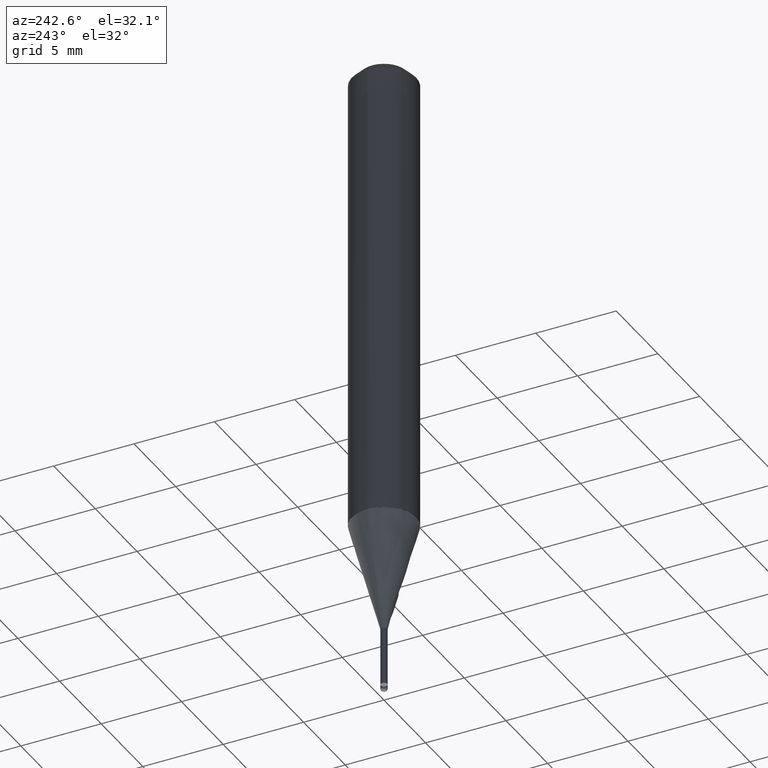
[diagram: clean part render]
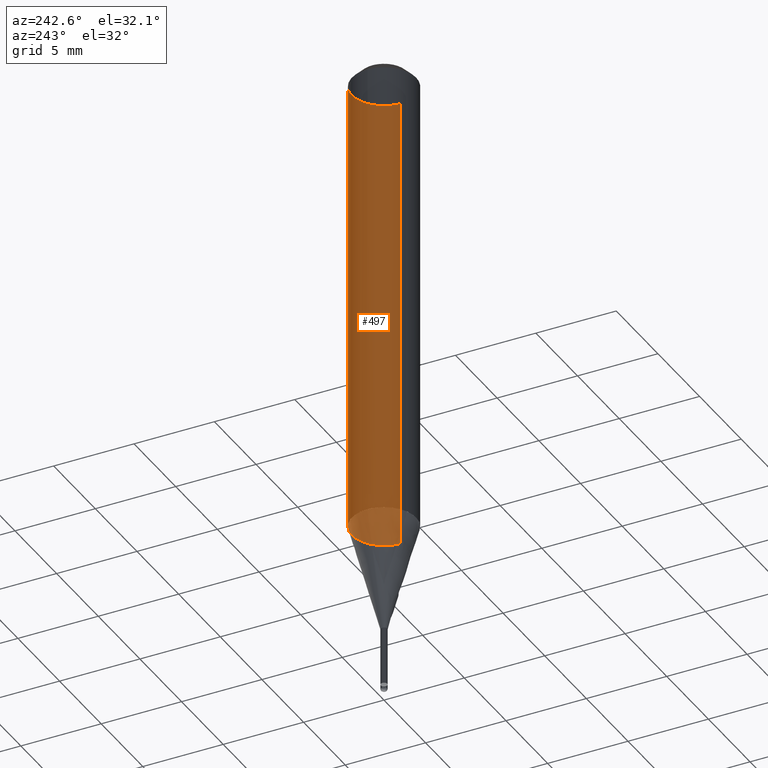
[diagram: same view with one face highlighted and labeled with its STEP entity id]
A machine part, auxiliary view. The second image highlights one B-rep face of the part: STEP entity #497.
In plain terms, the highlighted face is a freeform B-spline surface patch.
Its self-contained STEP definition (entity closure, byte-faithful):
#241=CARTESIAN_POINT('',(2.0,0.0,0.0));
#242=CARTESIAN_POINT('',(2.0,2.0,0.0));
#243=CARTESIAN_POINT('',(0.0,2.0,0.0));
#244=CARTESIAN_POINT('',(-2.0,2.0,0.0));
#245=CARTESIAN_POINT('',(-2.0,0.0,0.0));
#246=CARTESIAN_POINT('',(2.0,0.0,28.682));
#247=CARTESIAN_POINT('',(2.0,2.0,28.682));
#248=CARTESIAN_POINT('',(0.0,2.0,28.682));
#249=CARTESIAN_POINT('',(-2.0,2.0,28.682));
#250=CARTESIAN_POINT('',(-2.0,0.0,28.682));
#478=(
BOUNDED_SURFACE()
B_SPLINE_SURFACE(1,2,(
(#241,#242,#243,#244,#245),
(#246,#247,#248,#249,#250)
), .UNSPECIFIED.,.F.,.F.,.F.)
B_SPLINE_SURFACE_WITH_KNOTS((2,2),(3,2,3),(
0.0,1.0),(
0.0,0.5,1.0), .UNSPECIFIED.)
GEOMETRIC_REPRESENTATION_ITEM()
RATIONAL_B_SPLINE_SURFACE(((1.0,0.707106781187,1.0,0.707106781187,1.0),
(1.0,0.707106781187,1.0,0.707106781187,1.0)
))
REPRESENTATION_ITEM('')
SURFACE()
);
#479=(
BOUNDED_CURVE()
B_SPLINE_CURVE(2,(#246,#247,#248,#249,#250),.UNSPECIFIED.,.F.,.F.)
B_SPLINE_CURVE_WITH_KNOTS((3,2,3),
(0.0,0.5,1.0),.UNSPECIFIED.)
CURVE()
GEOMETRIC_REPRESENTATION_ITEM()
RATIONAL_B_SPLINE_CURVE((1.0,0.707106781187,1.0,0.707106781187,1.0))
REPRESENTATION_ITEM('')
);
#480=(
BOUNDED_CURVE()
B_SPLINE_CURVE(1,(#250,#245),.UNSPECIFIED.,.F.,.F.)
B_SPLINE_CURVE_WITH_KNOTS((2,2),
(0.0,1.0),.UNSPECIFIED.)
CURVE()
GEOMETRIC_REPRESENTATION_ITEM()
RATIONAL_B_SPLINE_CURVE((1.0,1.0))
REPRESENTATION_ITEM('')
);
#481=(
BOUNDED_CURVE()
B_SPLINE_CURVE(2,(#245,#244,#243,#242,#241),.UNSPECIFIED.,.F.,.F.)
B_SPLINE_CURVE_WITH_KNOTS((3,2,3),
(0.0,0.5,1.0),.UNSPECIFIED.)
CURVE()
GEOMETRIC_REPRESENTATION_ITEM()
RATIONAL_B_SPLINE_CURVE((1.0,0.707106781187,1.0,0.707106781187,1.0))
REPRESENTATION_ITEM('')
);
#482=(
BOUNDED_CURVE()
B_SPLINE_CURVE(1,(#241,#246),.UNSPECIFIED.,.F.,.F.)
B_SPLINE_CURVE_WITH_KNOTS((2,2),
(0.0,1.0),.UNSPECIFIED.)
CURVE()
GEOMETRIC_REPRESENTATION_ITEM()
RATIONAL_B_SPLINE_CURVE((1.0,1.0))
REPRESENTATION_ITEM('')
);
#483=VERTEX_POINT('',#241);
#484=VERTEX_POINT('',#245);
#485=VERTEX_POINT('',#246);
#486=VERTEX_POINT('',#250);
#487=EDGE_CURVE('',#485,#486,#479,.T.);
#488=EDGE_CURVE('',#486,#484,#480,.T.);
#489=EDGE_CURVE('',#484,#483,#481,.T.);
#490=EDGE_CURVE('',#483,#485,#482,.T.);
#491=ORIENTED_EDGE('',*,*,#487,.T.);
#492=ORIENTED_EDGE('',*,*,#488,.T.);
#493=ORIENTED_EDGE('',*,*,#489,.T.);
#494=ORIENTED_EDGE('',*,*,#490,.T.);
#495=EDGE_LOOP('',(#491,#492,#493,#494));
#496=FACE_OUTER_BOUND('',#495,.T.);
#497=ADVANCED_FACE('',(#496),#478,.T.);